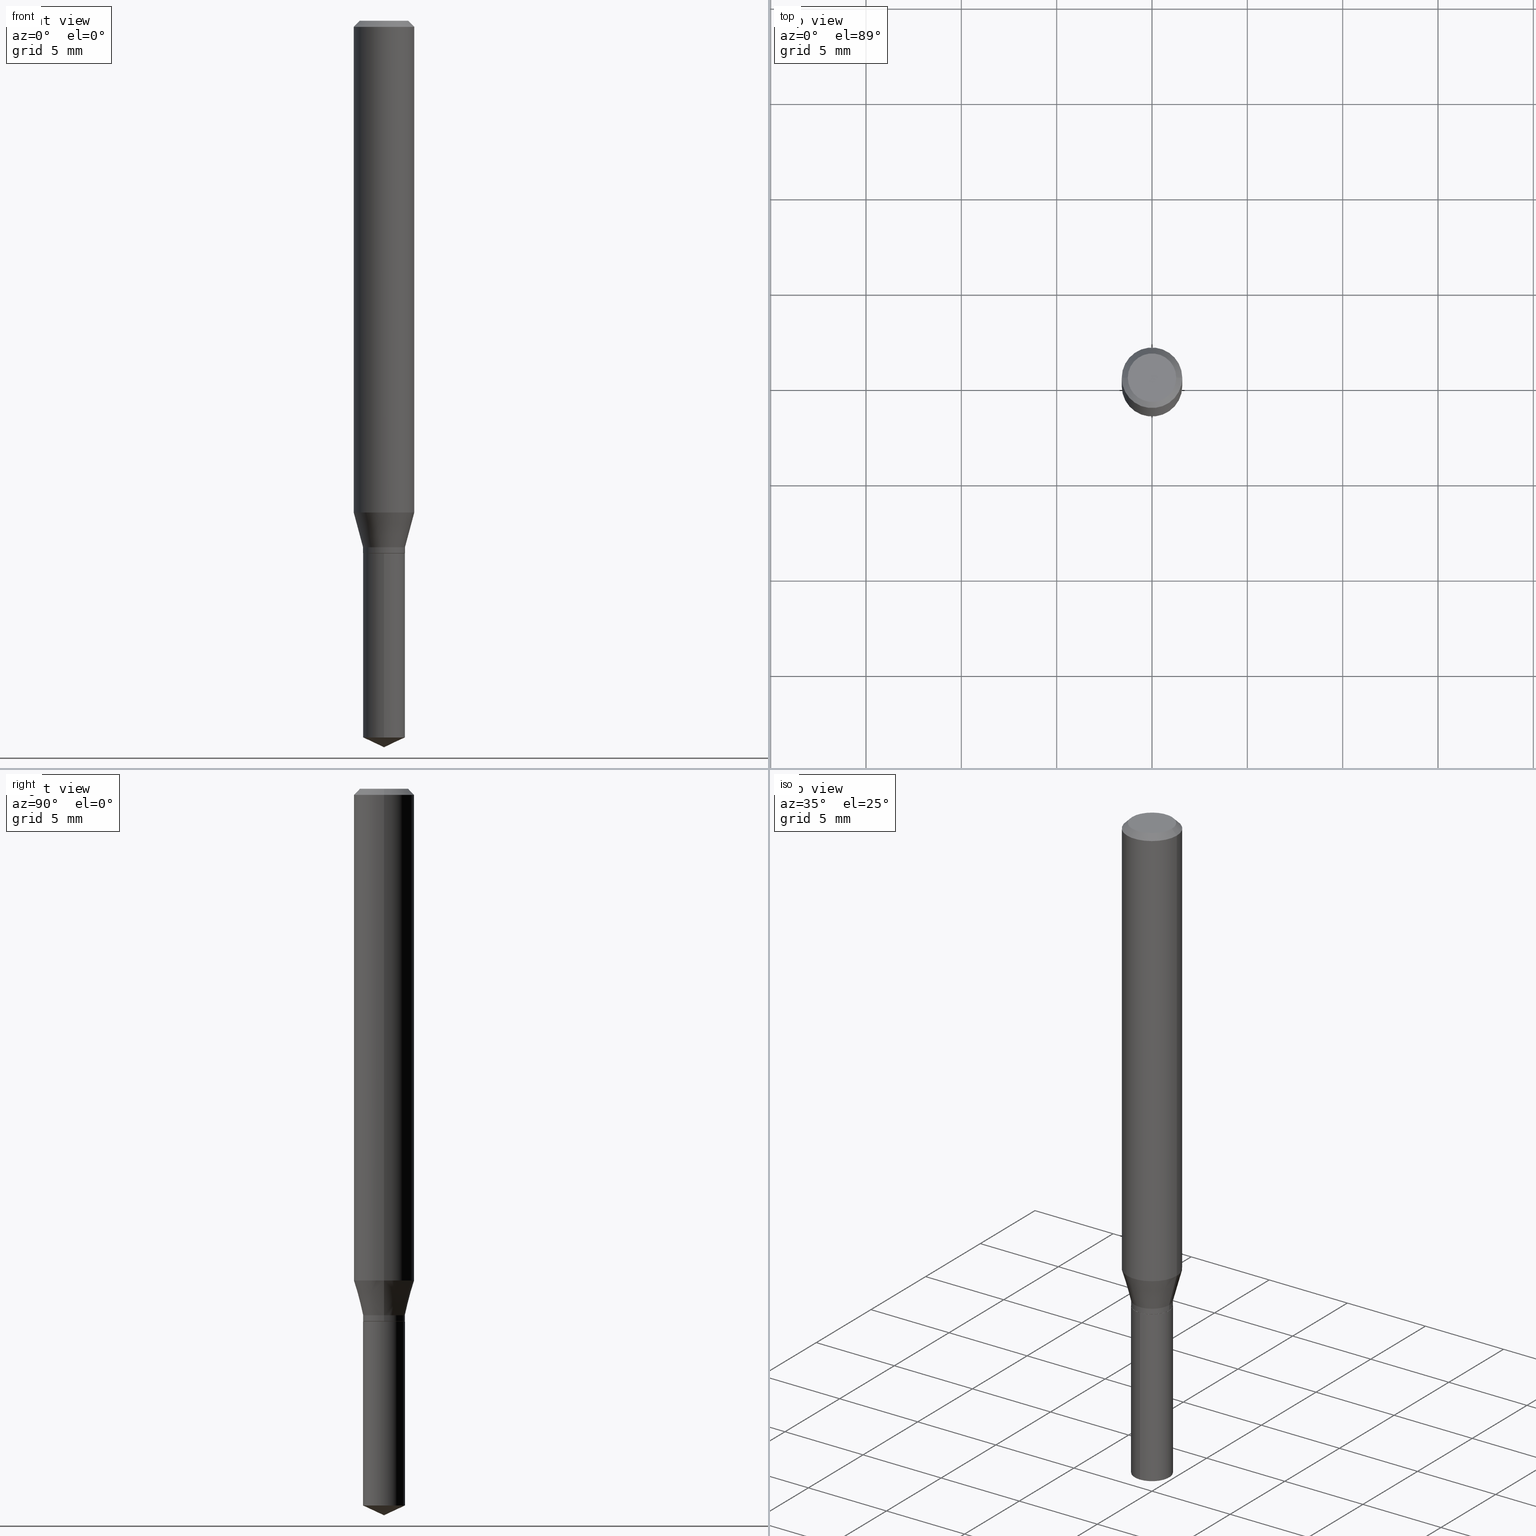
[diagram: canonical four-view strip — front | top / right | iso, engineering-drawing reading convention]
A machine part, canonical four-view strip (front | top / right | iso — engineering-drawing reading convention). The complete STEP part file that produces these views, byte-faithful:
ISO-10303-21;
HEADER;
FILE_DESCRIPTION (( 'STEP AP203' ),
    '1' );
FILE_NAME ('07364.STEP',
    '2024-04-23T20:45:41',
    ( '' ),
    ( '' ),
    'SwSTEP 2.0',
    'SolidWorks 2023',
    '' );
FILE_SCHEMA (( 'CONFIG_CONTROL_DESIGN' ));
ENDSEC;

DATA;
#1 = ADVANCED_FACE ( 'NONE', ( #488 ), #162, .T. ) ;
#2 = FACE_OUTER_BOUND ( 'NONE', #59, .T. ) ;
#3 = DIRECTION ( 'NONE',  ( 2.438088387897960049E-29, -3.491481338843145188E-15, -1.000000000000000000 ) ) ;
#4 = CC_DESIGN_DATE_AND_TIME_ASSIGNMENT ( #421, #41, ( #117 ) ) ;
#5 = AXIS2_PLACEMENT_3D ( 'NONE', #335, #417, #446 ) ;
#6 = AXIS2_PLACEMENT_3D ( 'NONE', #200, #354, #442 ) ;
#7 = FACE_OUTER_BOUND ( 'NONE', #94, .T. ) ;
#8 = AXIS2_PLACEMENT_3D ( 'NONE', #287, #250, #91 ) ;
#9 = DIRECTION ( 'NONE',  ( -1.000000000000000000, 6.982962677686265922E-15, -4.876176775795935793E-29 ) ) ;
#10 = FACE_OUTER_BOUND ( 'NONE', #194, .T. ) ;
#11 = AXIS2_PLACEMENT_3D ( 'NONE', #51, #129, #61 ) ;
#12 = ORIENTED_EDGE ( 'NONE', *, *, #396, .F. ) ;
#13 = EDGE_CURVE ( 'NONE', #424, #394, #458, .T. ) ;
#14 = EDGE_CURVE ( 'NONE', #258, #128, #378, .T. ) ;
#15 = DIRECTION ( 'NONE',  ( -2.445399690415121530E-29, 3.491580316559632610E-15, 1.000000000000000000 ) ) ;
#16 = ADVANCED_FACE ( 'NONE', ( #371 ), #34, .F. ) ;
#17 = CARTESIAN_POINT ( 'NONE',  ( 2.690015686803650369E-29, -3.840629472727460101E-15, -1.100000000000000089 ) ) ;
#18 = VERTEX_POINT ( 'NONE', #28 ) ;
#19 = DIRECTION ( 'NONE',  ( 1.000000000000000000, -6.982962677686269077E-15, 0.000000000000000000 ) ) ;
#20 = ORIENTED_EDGE ( 'NONE', *, *, #143, .T. ) ;
#21 = PERSON_AND_ORGANIZATION ( #165, #199 ) ;
#22 = DIRECTION ( 'NONE',  ( -2.445468806185136597E-29, 3.491481338843145583E-15, 1.000000000000000000 ) ) ;
#23 = VERTEX_POINT ( 'NONE', #73 ) ;
#24 = AXIS2_PLACEMENT_3D ( 'NONE', #87, #42, #124 ) ;
#25 = DIRECTION ( 'NONE',  ( -6.982962677686265922E-15, -1.000000000000000000, 3.154558884138872662E-15 ) ) ;
#26 = EDGE_LOOP ( 'NONE', ( #201, #134, #30, #315 ) ) ;
#27 = DIRECTION ( 'NONE',  ( 2.445468806185136597E-29, -3.491481338843145583E-15, -1.000000000000000000 ) ) ;
#28 = CARTESIAN_POINT ( 'NONE',  ( 3.076650045841595075E-16, 0.04329999999999615407, -1.100000000000000089 ) ) ;
#29 = DIRECTION ( 'NONE',  ( -2.445399690415121530E-29, 3.491580316559632610E-15, 1.000000000000000000 ) ) ;
#30 = ORIENTED_EDGE ( 'NONE', *, *, #351, .F. ) ;
#31 = CLOSED_SHELL ( 'NONE', ( #317, #420, #217, #1, #451, #180, #161, #58, #443, #16, #219, #324 ) ) ;
#32 = MECHANICAL_CONTEXT ( 'NONE', #381, 'mechanical' ) ;
#33 = EDGE_CURVE ( 'NONE', #279, #56, #490, .T. ) ;
#34 = PLANE ( 'NONE',  #221 ) ;
#35 = DIRECTION ( 'NONE',  ( 6.982962677686265922E-15, 1.000000000000000000, -3.491580316559632610E-15 ) ) ;
#36 = CARTESIAN_POINT ( 'NONE',  ( 0.000000000000000000, 0.000000000000000000, 0.000000000000000000 ) ) ;
#37 = CARTESIAN_POINT ( 'NONE',  ( -0.06250000000000001388, 3.927916506198521080E-16, -0.01250000000000008570 ) ) ;
#38 = CONICAL_SURFACE ( 'NONE', #293, 84.42940631927322670, 1.134464013796310899 ) ;
#39 =( LENGTH_UNIT ( ) NAMED_UNIT ( * ) SI_UNIT ( $, .METRE. ) );
#40 = LINE ( 'NONE', #107, #156 ) ;
#41 = DATE_TIME_ROLE ( 'classification_date' ) ;
#42 = DIRECTION ( 'NONE',  ( -2.445468806185136597E-29, 3.491481338843145583E-15, 1.000000000000000000 ) ) ;
#43 = APPROVAL_DATE_TIME ( #228, #84 ) ;
#44 = CARTESIAN_POINT ( 'NONE',  ( 0.06250000000000006939, -4.364351673553921624E-16, 3.047610484872463374E-30 ) ) ;
#45 = CONICAL_SURFACE ( 'NONE', #464, 0.04329999999999999127, 0.2617993877991499629 ) ;
#46 = ORIENTED_EDGE ( 'NONE', *, *, #120, .F. ) ;
#47 = DESIGN_CONTEXT ( 'detailed design', #450, 'design' ) ;
#48 = CYLINDRICAL_SURFACE ( 'NONE', #24, 0.04329999999999999127 ) ;
#49 = DIRECTION ( 'NONE',  ( 1.000000000000000000, -6.982962677686265922E-15, 4.876176775795935793E-29 ) ) ;
#50 = PERSON_AND_ORGANIZATION ( #165, #199 ) ;
#51 = CARTESIAN_POINT ( 'NONE',  ( 2.690015686803650369E-29, -3.840629472727460101E-15, -1.100000000000000089 ) ) ;
#52 = ORIENTED_EDGE ( 'NONE', *, *, #149, .T. ) ;
#53 = FACE_OUTER_BOUND ( 'NONE', #323, .T. ) ;
#54 = ORIENTED_EDGE ( 'NONE', *, *, #330, .T. ) ;
#55 = DIRECTION ( 'NONE',  ( 1.000000000000000000, -6.982962677686265922E-15, 0.000000000000000000 ) ) ;
#56 = VERTEX_POINT ( 'NONE', #64 ) ;
#57 = DIRECTION ( 'NONE',  ( 1.000000000000000000, -6.982962677686269866E-15, 0.000000000000000000 ) ) ;
#58 = ADVANCED_FACE ( 'NONE', ( #151 ), #328, .T. ) ;
#59 = EDGE_LOOP ( 'NONE', ( #174, #362, #277, #438 ) ) ;
#60 = VECTOR ( 'NONE', #298, 39.37007874015748143 ) ;
#61 = DIRECTION ( 'NONE',  ( 1.000000000000000000, -6.982962677686269077E-15, 0.000000000000000000 ) ) ;
#62 = ORIENTED_EDGE ( 'NONE', *, *, #377, .F. ) ;
#63 = CARTESIAN_POINT ( 'NONE',  ( -9.260740279983036507E-28, 1.322265303911854087E-13, 37.87007874015748143 ) ) ;
#64 = CARTESIAN_POINT ( 'NONE',  ( -0.04329999999999999127, -3.509396969106145992E-15, -1.099499999999999922 ) ) ;
#65 = DIRECTION ( 'NONE',  ( -1.000000000000000000, 6.982962677686265922E-15, 0.000000000000000000 ) ) ;
#66 = DIRECTION ( 'NONE',  ( -6.982962677686265922E-15, -1.000000000000000000, 6.309117768277745325E-15 ) ) ;
#67 = AXIS2_PLACEMENT_3D ( 'NONE', #300, #144, #187 ) ;
#68 = AXIS2_PLACEMENT_3D ( 'NONE', #284, #139, #55 ) ;
#69 = APPROVAL ( #341, 'UNSPECIFIED' ) ;
#70 = CARTESIAN_POINT ( 'NONE',  ( 2.658224592323243696E-29, -3.795240215322500220E-15, -1.087000000000000188 ) ) ;
#71 = DIRECTION ( 'NONE',  ( -2.445399690415121530E-29, 3.491580316559632610E-15, 1.000000000000000000 ) ) ;
#72 = DIRECTION ( 'NONE',  ( -2.445468806185136597E-29, 3.491481338843145583E-15, 1.000000000000000000 ) ) ;
#73 = CARTESIAN_POINT ( 'NONE',  ( 0.04279999999999998389, -4.139500275332432556E-15, -1.100000000000000089 ) ) ;
#74 = CALENDAR_DATE ( 2024, 23, 4 ) ;
#75 = ORIENTED_EDGE ( 'NONE', *, *, #289, .F. ) ;
#76 = AXIS2_PLACEMENT_3D ( 'NONE', #227, #218, #230 ) ;
#77 = CONICAL_SURFACE ( 'NONE', #350, 0.06250000000000001388, 0.7853981633974453924 ) ;
#78 = PERSON_AND_ORGANIZATION ( #165, #199 ) ;
#79 = CARTESIAN_POINT ( 'NONE',  ( 3.618800200464542381E-29, -5.166762676610084708E-15, -1.479808878401888572 ) ) ;
#80 = APPROVAL_DATE_TIME ( #418, #69 ) ;
#81 = ADVANCED_FACE ( 'NONE', ( #410 ), #130, .T. ) ;
#82 = CARTESIAN_POINT ( 'NONE',  ( -3.023622839437883944E-16, -0.04330000000000383542, -1.099999999999999867 ) ) ;
#83 = VERTEX_POINT ( 'NONE', #366 ) ;
#84 = APPROVAL ( #111, 'UNSPECIFIED' ) ;
#85 = VECTOR ( 'NONE', #121, 39.37007874015748143 ) ;
#86 = CC_DESIGN_APPROVAL ( #84, ( #175 ) ) ;
#87 = CARTESIAN_POINT ( 'NONE',  ( 0.000000000000000000, 0.000000000000000000, 0.000000000000000000 ) ) ;
#88 = COORDINATED_UNIVERSAL_TIME_OFFSET ( 5, 0, .BEHIND. ) ;
#89 = CARTESIAN_POINT ( 'NONE',  ( 3.076650045841501397E-16, 0.04329999999999615407, -1.100000000000000089 ) ) ;
#90 = EDGE_LOOP ( 'NONE', ( #355, #472, #198 ) ) ;
#91 = DIRECTION ( 'NONE',  ( 1.000000000000000000, -6.982962677686265922E-15, 4.875957971899673662E-29 ) ) ;
#92 = CIRCLE ( 'NONE', #76, 0.04999999999999999584 ) ;
#93 = AXIS2_PLACEMENT_3D ( 'NONE', #280, #483, #96 ) ;
#94 = EDGE_LOOP ( 'NONE', ( #158, #115, #52, #285 ) ) ;
#95 = PERSON_AND_ORGANIZATION_ROLE ( 'classification_officer' ) ;
#96 = DIRECTION ( 'NONE',  ( 1.000000000000000000, -6.982962677686269077E-15, 0.000000000000000000 ) ) ;
#97 = ORIENTED_EDGE ( 'NONE', *, *, #289, .T. ) ;
#98 = EDGE_CURVE ( 'NONE', #203, #481, #92, .T. ) ;
#99 = DIRECTION ( 'NONE',  ( 0.2588190451025212391, 1.565188264969622362E-15, 0.9659258262890679791 ) ) ;
#100 = ORIENTED_EDGE ( 'NONE', *, *, #133, .F. ) ;
#101 = CARTESIAN_POINT ( 'NONE',  ( 0.06250000000000001388, -4.724246415962604812E-16, -0.01250000000000008570 ) ) ;
#102 = PRODUCT_RELATED_PRODUCT_CATEGORY ( 'detail', '', ( #448 ) ) ;
#103 = VECTOR ( 'NONE', #395, 39.37007874015748854 ) ;
#104 = ORIENTED_EDGE ( 'NONE', *, *, #125, .F. ) ;
#105 = CARTESIAN_POINT ( 'NONE',  ( 0.000000000000000000, 0.000000000000000000, 0.000000000000000000 ) ) ;
#106 = CARTESIAN_POINT ( 'NONE',  ( 3.056836007731441853E-31, -4.364351673553962300E-17, -0.01250000000000008570 ) ) ;
#107 = CARTESIAN_POINT ( 'NONE',  ( -3.023622839437883944E-16, -0.04330000000000383542, -1.099999999999999867 ) ) ;
#108 = ORIENTED_EDGE ( 'NONE', *, *, #133, .T. ) ;
#109 = CIRCLE ( 'NONE', #379, 0.04329999999999999127 ) ;
#110 = CARTESIAN_POINT ( 'NONE',  ( 2.690015686803650369E-29, -3.840629472727460101E-15, -1.100000000000000089 ) ) ;
#111 = APPROVAL_STATUS ( 'not_yet_approved' ) ;
#112 = ADVANCED_FACE ( 'NONE', ( #179 ), #444, .F. ) ;
#113 = EDGE_LOOP ( 'NONE', ( #326, #216 ) ) ;
#114 = PERSON_AND_ORGANIZATION ( #165, #199 ) ;
#115 = ORIENTED_EDGE ( 'NONE', *, *, #13, .T. ) ;
#116 = AXIS2_PLACEMENT_3D ( 'NONE', #17, #135, #19 ) ;
#117 = SECURITY_CLASSIFICATION ( '', '', #433 ) ;
#118 = PERSON_AND_ORGANIZATION ( #165, #199 ) ;
#119 = LINE ( 'NONE', #349, #263 ) ;
#120 = EDGE_CURVE ( 'NONE', #56, #364, #407, .T. ) ;
#121 = DIRECTION ( 'NONE',  ( -2.445399690415121810E-29, 3.491580316559632610E-15, 1.000000000000000000 ) ) ;
#122 = VECTOR ( 'NONE', #99, 39.37007874015748854 ) ;
#123 = DIRECTION ( 'NONE',  ( 1.000000000000000000, -6.982962677686266711E-15, 4.876176775795935793E-29 ) ) ;
#124 = DIRECTION ( 'NONE',  ( 1.000000000000000000, -6.982962677686267499E-15, 4.876176775795936353E-29 ) ) ;
#125 = EDGE_CURVE ( 'NONE', #481, #132, #147, .T. ) ;
#126 = ORIENTED_EDGE ( 'NONE', *, *, #297, .F. ) ;
#127 = CARTESIAN_POINT ( 'NONE',  ( 3.668099535622682155E-29, -5.237370474839448718E-15, -1.500000000000000222 ) ) ;
#128 = VERTEX_POINT ( 'NONE', #456 ) ;
#129 = DIRECTION ( 'NONE',  ( -2.445468806185136597E-29, 3.491481338843145583E-15, 1.000000000000000000 ) ) ;
#130 = CONICAL_SURFACE ( 'NONE', #375, 84.42940631927322670, 1.134464013796310899 ) ;
#131 = LOCAL_TIME ( 16, 45, 41.00000000000000000, #170 ) ;
#132 = VERTEX_POINT ( 'NONE', #296 ) ;
#133 = EDGE_CURVE ( 'NONE', #394, #424, #337, .T. ) ;
#134 = ORIENTED_EDGE ( 'NONE', *, *, #427, .T. ) ;
#135 = DIRECTION ( 'NONE',  ( -2.445468806185136597E-29, 3.491481338843145583E-15, 1.000000000000000000 ) ) ;
#136 = EDGE_LOOP ( 'NONE', ( #164, #249, #479, #75 ) ) ;
#137 = CARTESIAN_POINT ( 'NONE',  ( 0.04279999999999998389, -4.139500275332432556E-15, -1.100000000000000089 ) ) ;
#138 = ORIENTED_EDGE ( 'NONE', *, *, #255, .T. ) ;
#139 = DIRECTION ( 'NONE',  ( -2.445468806185136597E-29, 3.491481338843145583E-15, 1.000000000000000000 ) ) ;
#140 = AXIS2_PLACEMENT_3D ( 'NONE', #110, #225, #35 ) ;
#141 = CARTESIAN_POINT ( 'NONE',  ( 0.000000000000000000, 0.000000000000000000, 0.000000000000000000 ) ) ;
#142 = APPLICATION_PROTOCOL_DEFINITION ( 'international standard', 'config_control_design', 1994, #450 ) ;
#143 = EDGE_CURVE ( 'NONE', #353, #288, #416, .T. ) ;
#144 = DIRECTION ( 'NONE',  ( -2.445468806185136597E-29, 3.491481338843145583E-15, 1.000000000000000000 ) ) ;
#145 = DIRECTION ( 'NONE',  ( -0.7071067811865294761, 7.493145998870289474E-15, 0.7071067811865655584 ) ) ;
#146 = DIRECTION ( 'NONE',  ( -2.445468806185136597E-29, 3.491481338843145583E-15, 1.000000000000000000 ) ) ;
#147 = LINE ( 'NONE', #37, #477 ) ;
#148 = AXIS2_PLACEMENT_3D ( 'NONE', #303, #454, #264 ) ;
#149 = EDGE_CURVE ( 'NONE', #394, #206, #40, .T. ) ;
#150 = APPROVAL_ROLE ( '' ) ;
#151 = FACE_OUTER_BOUND ( 'NONE', #241, .T. ) ;
#152 = CC_DESIGN_PERSON_AND_ORGANIZATION_ASSIGNMENT ( #470, #384, ( #425 ) ) ;
#153 = FACE_OUTER_BOUND ( 'NONE', #90, .T. ) ;
#154 = EDGE_CURVE ( 'NONE', #364, #128, #119, .T. ) ;
#155 = EDGE_LOOP ( 'NONE', ( #108, #466, #62, #440 ) ) ;
#156 = VECTOR ( 'NONE', #159, 39.37007874015748143 ) ;
#157 = AXIS2_PLACEMENT_3D ( 'NONE', #260, #372, #406 ) ;
#158 = ORIENTED_EDGE ( 'NONE', *, *, #224, .F. ) ;
#159 = DIRECTION ( 'NONE',  ( -2.445399690415121810E-29, 3.491580316559632610E-15, 1.000000000000000000 ) ) ;
#160 = DIRECTION ( 'NONE',  ( -0.7071067811865454633, 2.468850131082235367E-15, -0.7071067811865495711 ) ) ;
#161 = ADVANCED_FACE ( 'NONE', ( #308 ), #45, .T. ) ;
#162 = CONICAL_SURFACE ( 'NONE', #67, 0.04329999999999999127, 0.2617993877991499629 ) ;
#163 = AXIS2_PLACEMENT_3D ( 'NONE', #363, #27, #178 ) ;
#164 = ORIENTED_EDGE ( 'NONE', *, *, #33, .F. ) ;
#165 = PERSON ( 'UNSPECIFIED', 'UNSPECIFIED', 'UNSPECIFIED', ('UNSPECIFIED'), ('UNSPECIFIED'), ('UNSPECIFIED') ) ;
#166 = CARTESIAN_POINT ( 'NONE',  ( 0.04329999999999999127, -4.097602499266315682E-15, -1.087000000000000188 ) ) ;
#167 = ORIENTED_EDGE ( 'NONE', *, *, #271, .T. ) ;
#168 = LINE ( 'NONE', #137, #244 ) ;
#169 = ORIENTED_EDGE ( 'NONE', *, *, #271, .F. ) ;
#170 = COORDINATED_UNIVERSAL_TIME_OFFSET ( 5, 0, .BEHIND. ) ;
#171 = CARTESIAN_POINT ( 'NONE',  ( 2.690015686803650369E-29, -3.840629472727460101E-15, -1.100000000000000089 ) ) ;
#172 = VECTOR ( 'NONE', #489, 39.37007874015748143 ) ;
#173 = ADVANCED_BREP_SHAPE_REPRESENTATION ( '07364', ( #399, #403, #301 ), #419 ) ;
#174 = ORIENTED_EDGE ( 'NONE', *, *, #373, .F. ) ;
#175 = PRODUCT_DEFINITION ( 'UNKNOWN', '', #425, #47 ) ;
#176 = CARTESIAN_POINT ( 'NONE',  ( 3.076650045841595568E-16, 0.04329999999999482874, -1.479808878401888794 ) ) ;
#177 = ORIENTED_EDGE ( 'NONE', *, *, #376, .T. ) ;
#178 = DIRECTION ( 'NONE',  ( -1.000000000000000000, 6.982962677686265922E-15, 0.000000000000000000 ) ) ;
#179 = FACE_OUTER_BOUND ( 'NONE', #318, .T. ) ;
#180 = ADVANCED_FACE ( 'NONE', ( #10 ), #48, .T. ) ;
#181 = LENGTH_MEASURE_WITH_UNIT ( LENGTH_MEASURE( 0.02539999999999999897 ), #39 );
#182 = DIRECTION ( 'NONE',  ( -2.445399690415121530E-29, 3.491580316559632610E-15, 1.000000000000000000 ) ) ;
#183 = CONICAL_SURFACE ( 'NONE', #93, 0.04279999999999998389, 0.7853981633974227439 ) ;
#184 = EDGE_LOOP ( 'NONE', ( #469, #286, #177, #12 ) ) ;
#185 = LOCAL_TIME ( 16, 45, 41.00000000000000000, #207 ) ;
#186 = CARTESIAN_POINT ( 'NONE',  ( -0.04329999999999999127, 3.076650045841233185E-16, -2.129898894080373703E-30 ) ) ;
#187 = DIRECTION ( 'NONE',  ( 1.000000000000000000, -6.982962677686269866E-15, 0.000000000000000000 ) ) ;
#188 = FACE_OUTER_BOUND ( 'NONE', #239, .T. ) ;
#189 = AXIS2_PLACEMENT_3D ( 'NONE', #79, #182, #66 ) ;
#190 = CIRCLE ( 'NONE', #232, 0.06250000000000012490 ) ;
#191 = CARTESIAN_POINT ( 'NONE',  ( 2.690015686803650369E-29, -3.840629472727460101E-15, -1.100000000000000089 ) ) ;
#192 = SHAPE_DEFINITION_REPRESENTATION ( #305, #173 ) ;
#193 = EDGE_CURVE ( 'NONE', #402, #424, #278, .T. ) ;
#194 = EDGE_LOOP ( 'NONE', ( #46, #97, #20, #382 ) ) ;
#195 = VECTOR ( 'NONE', #145, 39.37007874015748143 ) ;
#196 = CIRCLE ( 'NONE', #8, 0.04999999999999999584 ) ;
#197 = CYLINDRICAL_SURFACE ( 'NONE', #252, 0.06250000000000006939 ) ;
#198 = ORIENTED_EDGE ( 'NONE', *, *, #13, .F. ) ;
#199 = ORGANIZATION ( 'UNSPECIFIED', 'UNSPECIFIED', '' ) ;
#200 = CARTESIAN_POINT ( 'NONE',  ( 2.688792952400557567E-29, -3.838883732058038598E-15, -1.099499999999999922 ) ) ;
#201 = ORIENTED_EDGE ( 'NONE', *, *, #14, .T. ) ;
#202 = APPROVAL_STATUS ( 'not_yet_approved' ) ;
#203 = VERTEX_POINT ( 'NONE', #459 ) ;
#204 = EDGE_CURVE ( 'NONE', #258, #83, #237, .T. ) ;
#205 = CARTESIAN_POINT ( 'NONE',  ( 0.06250000000000012490, -3.981491976273259737E-15, -1.015344624494677328 ) ) ;
#206 = VERTEX_POINT ( 'NONE', #82 ) ;
#207 = COORDINATED_UNIVERSAL_TIME_OFFSET ( 5, 0, .BEHIND. ) ;
#208 = CARTESIAN_POINT ( 'NONE',  ( -0.04279999999999998389, -3.533867954648026776E-15, -1.100000000000000089 ) ) ;
#209 = ORIENTED_EDGE ( 'NONE', *, *, #330, .F. ) ;
#210 = CIRCLE ( 'NONE', #360, 0.04279999999999998389 ) ;
#211 = DIRECTION ( 'NONE',  ( 1.000000000000000000, -6.982962677686269077E-15, 0.000000000000000000 ) ) ;
#212 = AXIS2_PLACEMENT_3D ( 'NONE', #191, #15, #342 ) ;
#213 = CONICAL_SURFACE ( 'NONE', #163, 0.06250000000000001388, 0.7853981633974453924 ) ;
#214 = ORIENTED_EDGE ( 'NONE', *, *, #476, .F. ) ;
#215 = CARTESIAN_POINT ( 'NONE',  ( 2.690015686803650369E-29, -3.840629472727460101E-15, -1.100000000000000089 ) ) ;
#216 = ORIENTED_EDGE ( 'NONE', *, *, #98, .T. ) ;
#217 = ADVANCED_FACE ( 'NONE', ( #310 ), #197, .T. ) ;
#218 = DIRECTION ( 'NONE',  ( -2.445468806185136597E-29, 3.491481338843145583E-15, 1.000000000000000000 ) ) ;
#219 = ADVANCED_FACE ( 'NONE', ( #429 ), #276, .F. ) ;
#220 =( NAMED_UNIT ( * ) SI_UNIT ( $, .STERADIAN. ) SOLID_ANGLE_UNIT ( ) );
#221 = AXIS2_PLACEMENT_3D ( 'NONE', #405, #3, #9 ) ;
#222 = EDGE_LOOP ( 'NONE', ( #167, #267, #209, #475 ) ) ;
#223 = LOCAL_TIME ( 16, 45, 41.00000000000000000, #88 ) ;
#224 = EDGE_CURVE ( 'NONE', #424, #18, #233, .T. ) ;
#225 = DIRECTION ( 'NONE',  ( 2.445399690415121250E-29, -3.491580316559632610E-15, -1.000000000000000000 ) ) ;
#226 = CARTESIAN_POINT ( 'NONE',  ( 2.690015686803650369E-29, -3.840629472727460101E-15, -1.100000000000000089 ) ) ;
#227 = CARTESIAN_POINT ( 'NONE',  ( 3.893286209682126177E-47, -5.558580879666067980E-33, -1.592040838891559689E-18 ) ) ;
#228 = DATE_AND_TIME ( #74, #485 ) ;
#229 = DIMENSIONAL_EXPONENTS ( 1.000000000000000000, 0.000000000000000000, 0.000000000000000000, 0.000000000000000000, 0.000000000000000000, 0.000000000000000000, 0.000000000000000000 ) ;
#230 = DIRECTION ( 'NONE',  ( 1.000000000000000000, -6.982962677686265922E-15, 4.875957971899673662E-29 ) ) ;
#231 = VECTOR ( 'NONE', #334, 39.37007874015748143 ) ;
#232 = AXIS2_PLACEMENT_3D ( 'NONE', #389, #22, #253 ) ;
#233 = LINE ( 'NONE', #89, #85 ) ;
#234 = ORIENTED_EDGE ( 'NONE', *, *, #14, .F. ) ;
#235 = VECTOR ( 'NONE', #344, 39.37007874015748143 ) ;
#236 = AXIS2_PLACEMENT_3D ( 'NONE', #105, #72, #365 ) ;
#237 = LINE ( 'NONE', #44, #235 ) ;
#238 = CC_DESIGN_PERSON_AND_ORGANIZATION_ASSIGNMENT ( #114, #242, ( #175 ) ) ;
#239 = EDGE_LOOP ( 'NONE', ( #54, #311, #251, #473 ) ) ;
#240 = DIRECTION ( 'NONE',  ( 0.7071067811865454633, -7.319954787623248157E-15, -0.7071067811865495711 ) ) ;
#241 = EDGE_LOOP ( 'NONE', ( #246, #359, #256, #214 ) ) ;
#242 = PERSON_AND_ORGANIZATION_ROLE ( 'creator' ) ;
#243 = CIRCLE ( 'NONE', #212, 0.04329999999999999127 ) ;
#244 = VECTOR ( 'NONE', #471, 39.37007874015748143 ) ;
#245 = CARTESIAN_POINT ( 'NONE',  ( -3.023622839437790760E-16, -0.04330000000000516075, -1.479808878401888128 ) ) ;
#246 = ORIENTED_EDGE ( 'NONE', *, *, #427, .F. ) ;
#247 = CALENDAR_DATE ( 2024, 23, 4 ) ;
#248 = CARTESIAN_POINT ( 'NONE',  ( 2.658224592323243696E-29, -3.795240215322500220E-15, -1.087000000000000188 ) ) ;
#249 = ORIENTED_EDGE ( 'NONE', *, *, #412, .T. ) ;
#250 = DIRECTION ( 'NONE',  ( -2.445468806185136597E-29, 3.491481338843145583E-15, 1.000000000000000000 ) ) ;
#251 = ORIENTED_EDGE ( 'NONE', *, *, #487, .F. ) ;
#252 = AXIS2_PLACEMENT_3D ( 'NONE', #348, #461, #123 ) ;
#253 = DIRECTION ( 'NONE',  ( 1.000000000000000000, -6.982962677686264344E-15, 0.000000000000000000 ) ) ;
#254 = AXIS2_PLACEMENT_3D ( 'NONE', #215, #401, #385 ) ;
#255 = EDGE_CURVE ( 'NONE', #18, #206, #243, .T. ) ;
#256 = ORIENTED_EDGE ( 'NONE', *, *, #204, .T. ) ;
#257 = CYLINDRICAL_SURFACE ( 'NONE', #345, 0.04329999999999999127 ) ;
#258 = VERTEX_POINT ( 'NONE', #205 ) ;
#259 = CC_DESIGN_PERSON_AND_ORGANIZATION_ASSIGNMENT ( #50, #95, ( #117 ) ) ;
#260 = CARTESIAN_POINT ( 'NONE',  ( 3.056836007731441853E-31, -4.364351673553962300E-17, -0.01250000000000008570 ) ) ;
#261 = DIRECTION ( 'NONE',  ( -6.982962677686267499E-15, -1.000000000000000000, 3.520397390770500413E-15 ) ) ;
#262 = CARTESIAN_POINT ( 'NONE',  ( -0.06250000000000006939, 4.440892098500631092E-16, -3.074334431409319267E-30 ) ) ;
#263 = VECTOR ( 'NONE', #462, 39.37007874015748854 ) ;
#264 = DIRECTION ( 'NONE',  ( -6.982962677686265922E-15, -1.000000000000000000, 6.309117768277745325E-15 ) ) ;
#265 = CC_DESIGN_SECURITY_CLASSIFICATION ( #117, ( #425 ) ) ;
#266 = APPLICATION_PROTOCOL_DEFINITION ( 'international standard', 'config_control_design', 1994, #381 ) ;
#267 = ORIENTED_EDGE ( 'NONE', *, *, #33, .T. ) ;
#268 =( NAMED_UNIT ( * ) PLANE_ANGLE_UNIT ( ) SI_UNIT ( $, .RADIAN. ) );
#269 = DIRECTION ( 'NONE',  ( 1.000000000000000000, -6.982962677686266711E-15, 4.876176775795935793E-29 ) ) ;
#270 = CALENDAR_DATE ( 2024, 23, 4 ) ;
#271 = EDGE_CURVE ( 'NONE', #23, #279, #210, .T. ) ;
#272 = LOCAL_TIME ( 16, 45, 41.00000000000000000, #306 ) ;
#273 = CARTESIAN_POINT ( 'NONE',  ( 3.668252923656895710E-29, -5.237152723863177100E-15, -1.500000000000000222 ) ) ;
#274 = AXIS2_PLACEMENT_3D ( 'NONE', #141, #449, #269 ) ;
#275 = AXIS2_PLACEMENT_3D ( 'NONE', #171, #322, #25 ) ;
#276 = PLANE ( 'NONE',  #299 ) ;
#277 = ORIENTED_EDGE ( 'NONE', *, *, #125, .T. ) ;
#278 = LINE ( 'NONE', #273, #452 ) ;
#279 = VERTEX_POINT ( 'NONE', #208 ) ;
#280 = CARTESIAN_POINT ( 'NONE',  ( 2.690015686803650369E-29, -3.840629472727460101E-15, -1.100000000000000089 ) ) ;
#281 = ORIENTED_EDGE ( 'NONE', *, *, #377, .T. ) ;
#282 = DATE_AND_TIME ( #319, #223 ) ;
#283 = APPROVAL_PERSON_ORGANIZATION ( #78, #69, #356 ) ;
#284 = CARTESIAN_POINT ( 'NONE',  ( 3.056836007731441853E-31, -4.364351673553962300E-17, -0.01250000000000008570 ) ) ;
#285 = ORIENTED_EDGE ( 'NONE', *, *, #255, .F. ) ;
#286 = ORIENTED_EDGE ( 'NONE', *, *, #358, .T. ) ;
#287 = CARTESIAN_POINT ( 'NONE',  ( 3.893286209682126177E-47, -5.558580879666067980E-33, -1.592040838891559689E-18 ) ) ;
#288 = VERTEX_POINT ( 'NONE', #166 ) ;
#289 = EDGE_CURVE ( 'NONE', #56, #353, #484, .T. ) ;
#290 = DIRECTION ( 'NONE',  ( -2.445468806185136597E-29, 3.491481338843145583E-15, 1.000000000000000000 ) ) ;
#291 = EDGE_LOOP ( 'NONE', ( #169, #312 ) ) ;
#292 = CARTESIAN_POINT ( 'NONE',  ( 0.04329999999999999127, -4.141246016001854060E-15, -1.099499999999999922 ) ) ;
#293 = AXIS2_PLACEMENT_3D ( 'NONE', #63, #408, #336 ) ;
#294 = CARTESIAN_POINT ( 'NONE',  ( -9.260740279983036507E-28, 1.322265303911854087E-13, 37.87007874015748143 ) ) ;
#295 = PERSON_AND_ORGANIZATION ( #165, #199 ) ;
#296 = CARTESIAN_POINT ( 'NONE',  ( -0.06250000000000001388, -1.350260952976639620E-15, -0.01250000000000008570 ) ) ;
#297 = EDGE_CURVE ( 'NONE', #402, #394, #435, .T. ) ;
#298 = DIRECTION ( 'NONE',  ( -2.445468806185136877E-29, 3.491481338843145188E-15, 1.000000000000000000 ) ) ;
#299 = AXIS2_PLACEMENT_3D ( 'NONE', #383, #346, #49 ) ;
#300 = CARTESIAN_POINT ( 'NONE',  ( 2.658224592323243696E-29, -3.795240215322500220E-15, -1.087000000000000188 ) ) ;
#301 = AXIS2_PLACEMENT_3D ( 'NONE', #36, #332, #304 ) ;
#302 = LINE ( 'NONE', #262, #60 ) ;
#303 = CARTESIAN_POINT ( 'NONE',  ( 3.618800200464542381E-29, -5.166762676610084708E-15, -1.479808878401888572 ) ) ;
#304 = DIRECTION ( 'NONE',  ( 1.000000000000000000, 0.000000000000000000, 0.000000000000000000 ) ) ;
#305 = PRODUCT_DEFINITION_SHAPE ( 'NONE', 'NONE',  #175 ) ;
#306 = COORDINATED_UNIVERSAL_TIME_OFFSET ( 5, 0, .BEHIND. ) ;
#307 = UNCERTAINTY_MEASURE_WITH_UNIT (LENGTH_MEASURE( 1.000000000000000082E-05 ), #370, 'distance_accuracy_value', 'NONE');
#308 = FACE_OUTER_BOUND ( 'NONE', #184, .T. ) ;
#309 = APPROVAL_PERSON_ORGANIZATION ( #295, #84, #150 ) ;
#310 = FACE_OUTER_BOUND ( 'NONE', #26, .T. ) ;
#311 = ORIENTED_EDGE ( 'NONE', *, *, #120, .T. ) ;
#312 = ORIENTED_EDGE ( 'NONE', *, *, #412, .F. ) ;
#313 = APPROVAL_DATE_TIME ( #282, #367 ) ;
#314 = AXIS2_PLACEMENT_3D ( 'NONE', #70, #146, #404 ) ;
#315 = ORIENTED_EDGE ( 'NONE', *, *, #204, .F. ) ;
#316 = LINE ( 'NONE', #101, #400 ) ;
#317 = ADVANCED_FACE ( 'NONE', ( #480 ), #329, .T. ) ;
#318 = EDGE_LOOP ( 'NONE', ( #281, #138 ) ) ;
#319 = CALENDAR_DATE ( 2024, 23, 4 ) ;
#320 = FACE_OUTER_BOUND ( 'NONE', #155, .T. ) ;
#321 = ORIENTED_EDGE ( 'NONE', *, *, #351, .T. ) ;
#322 = DIRECTION ( 'NONE',  ( -2.445399690415121530E-29, 3.491580316559632610E-15, 1.000000000000000000 ) ) ;
#323 = EDGE_LOOP ( 'NONE', ( #397, #347, #321, #104 ) ) ;
#324 = ADVANCED_FACE ( 'NONE', ( #325 ), #183, .T. ) ;
#325 = FACE_OUTER_BOUND ( 'NONE', #136, .T. ) ;
#326 = ORIENTED_EDGE ( 'NONE', *, *, #392, .T. ) ;
#327 = CARTESIAN_POINT ( 'NONE',  ( 3.668099535622682715E-29, -5.237370474839449507E-15, -1.500000000000000222 ) ) ;
#328 = CYLINDRICAL_SURFACE ( 'NONE', #274, 0.06250000000000006939 ) ;
#329 = CONICAL_SURFACE ( 'NONE', #116, 0.04279999999999998389, 0.7853981633974227439 ) ;
#330 = EDGE_CURVE ( 'NONE', #353, #56, #387, .T. ) ;
#331 = CC_DESIGN_APPROVAL ( #367, ( #425 ) ) ;
#332 = DIRECTION ( 'NONE',  ( 0.000000000000000000, 0.000000000000000000, 1.000000000000000000 ) ) ;
#333 = EDGE_CURVE ( 'NONE', #23, #353, #168, .T. ) ;
#334 = DIRECTION ( 'NONE',  ( -2.445468806185136877E-29, 3.491481338843145188E-15, 1.000000000000000000 ) ) ;
#335 = CARTESIAN_POINT ( 'NONE',  ( 2.482993606729494385E-29, -3.545056808917866884E-15, -1.015344624494677328 ) ) ;
#336 = DIRECTION ( 'NONE',  ( -6.982962677686267499E-15, -1.000000000000000000, 3.520397390770500413E-15 ) ) ;
#337 = CIRCLE ( 'NONE', #189, 0.04329999999999999127 ) ;
#338 = CIRCLE ( 'NONE', #314, 0.04329999999999999127 ) ;
#339 = CARTESIAN_POINT ( 'NONE',  ( -0.04279999999999998389, -3.536517181822137583E-15, -1.100000000000000089 ) ) ;
#340 = CC_DESIGN_DATE_AND_TIME_ASSIGNMENT ( #457, #428, ( #175 ) ) ;
#341 = APPROVAL_STATUS ( 'not_yet_approved' ) ;
#342 = DIRECTION ( 'NONE',  ( -6.982962677686265922E-15, -1.000000000000000000, 3.154558884138872662E-15 ) ) ;
#343 = APPROVAL_ROLE ( '' ) ;
#344 = DIRECTION ( 'NONE',  ( -2.445468806185136877E-29, 3.491481338843145188E-15, 1.000000000000000000 ) ) ;
#345 = AXIS2_PLACEMENT_3D ( 'NONE', #226, #29, #445 ) ;
#346 = DIRECTION ( 'NONE',  ( -2.438088387897960049E-29, 3.491481338843145188E-15, 1.000000000000000000 ) ) ;
#347 = ORIENTED_EDGE ( 'NONE', *, *, #373, .T. ) ;
#348 = CARTESIAN_POINT ( 'NONE',  ( 0.000000000000000000, 0.000000000000000000, 0.000000000000000000 ) ) ;
#349 = CARTESIAN_POINT ( 'NONE',  ( -0.04329999999999999127, -3.487575210738376803E-15, -1.087000000000000188 ) ) ;
#350 = AXIS2_PLACEMENT_3D ( 'NONE', #106, #374, #65 ) ;
#351 = EDGE_CURVE ( 'NONE', #83, #132, #465, .T. ) ;
#352 = DIRECTION ( 'NONE',  ( -2.445468806185136597E-29, 3.491481338843145583E-15, 1.000000000000000000 ) ) ;
#353 = VERTEX_POINT ( 'NONE', #292 ) ;
#354 = DIRECTION ( 'NONE',  ( -2.445468806185136597E-29, 3.491481338843145583E-15, 1.000000000000000000 ) ) ;
#355 = ORIENTED_EDGE ( 'NONE', *, *, #193, .F. ) ;
#356 = APPROVAL_ROLE ( '' ) ;
#357 = CARTESIAN_POINT ( 'NONE',  ( -0.04329999999999999127, -3.509396969106145992E-15, -1.087000000000000188 ) ) ;
#358 = EDGE_CURVE ( 'NONE', #364, #288, #109, .T. ) ;
#359 = ORIENTED_EDGE ( 'NONE', *, *, #396, .T. ) ;
#360 = AXIS2_PLACEMENT_3D ( 'NONE', #437, #478, #211 ) ;
#361 = LINE ( 'NONE', #431, #122 ) ;
#362 = ORIENTED_EDGE ( 'NONE', *, *, #392, .F. ) ;
#363 = CARTESIAN_POINT ( 'NONE',  ( 3.056836007731441853E-31, -4.364351673553962300E-17, -0.01250000000000008570 ) ) ;
#364 = VERTEX_POINT ( 'NONE', #357 ) ;
#365 = DIRECTION ( 'NONE',  ( 1.000000000000000000, -6.982962677686267499E-15, 4.876176775795936353E-29 ) ) ;
#366 = CARTESIAN_POINT ( 'NONE',  ( 0.06250000000000001388, -4.800786840909313294E-16, -0.01250000000000008570 ) ) ;
#367 = APPROVAL ( #202, 'UNSPECIFIED' ) ;
#368 = CIRCLE ( 'NONE', #11, 0.04279999999999998389 ) ;
#369 = CARTESIAN_POINT ( 'NONE',  ( 0.04329999999999999127, -3.023622839438153143E-16, 2.111384543919639926E-30 ) ) ;
#370 =( CONVERSION_BASED_UNIT ( 'INCH', #181 ) LENGTH_UNIT ( ) NAMED_UNIT ( #229 ) );
#371 = FACE_OUTER_BOUND ( 'NONE', #113, .T. ) ;
#372 = DIRECTION ( 'NONE',  ( -2.445468806185136597E-29, 3.491481338843145583E-15, 1.000000000000000000 ) ) ;
#373 = EDGE_CURVE ( 'NONE', #203, #83, #316, .T. ) ;
#374 = DIRECTION ( 'NONE',  ( 2.445468806185136597E-29, -3.491481338843145583E-15, -1.000000000000000000 ) ) ;
#375 = AXIS2_PLACEMENT_3D ( 'NONE', #294, #71, #261 ) ;
#376 = EDGE_CURVE ( 'NONE', #288, #258, #361, .T. ) ;
#377 = EDGE_CURVE ( 'NONE', #206, #18, #453, .T. ) ;
#378 = CIRCLE ( 'NONE', #5, 0.06250000000000012490 ) ;
#379 = AXIS2_PLACEMENT_3D ( 'NONE', #248, #290, #57 ) ;
#380 = DIRECTION ( 'NONE',  ( -2.445468806185136597E-29, 3.491481338843145583E-15, 1.000000000000000000 ) ) ;
#381 = APPLICATION_CONTEXT ( 'configuration controlled 3d designs of mechanical parts and assemblies' ) ;
#382 = ORIENTED_EDGE ( 'NONE', *, *, #358, .F. ) ;
#383 = CARTESIAN_POINT ( 'NONE',  ( 2.690015686803650369E-29, -3.840629472727460101E-15, -1.100000000000000089 ) ) ;
#384 = PERSON_AND_ORGANIZATION_ROLE ( 'design_supplier' ) ;
#385 = DIRECTION ( 'NONE',  ( -6.982962677686265922E-15, -1.000000000000000000, 3.154558884138872662E-15 ) ) ;
#386 = EDGE_LOOP ( 'NONE', ( #126, #432, #100 ) ) ;
#387 = CIRCLE ( 'NONE', #460, 0.04329999999999999127 ) ;
#388 = CC_DESIGN_PERSON_AND_ORGANIZATION_ASSIGNMENT ( #411, #486, ( #448 ) ) ;
#389 = CARTESIAN_POINT ( 'NONE',  ( 2.482993606729494385E-29, -3.545056808917866884E-15, -1.015344624494677328 ) ) ;
#390 = ORIENTED_EDGE ( 'NONE', *, *, #487, .T. ) ;
#391 = PERSON_AND_ORGANIZATION_ROLE ( 'creator' ) ;
#392 = EDGE_CURVE ( 'NONE', #481, #203, #196, .T. ) ;
#393 = DIRECTION ( 'NONE',  ( 1.000000000000000000, -6.982962677686269866E-15, 0.000000000000000000 ) ) ;
#394 = VERTEX_POINT ( 'NONE', #245 ) ;
#395 = DIRECTION ( 'NONE',  ( -6.328713451373358335E-15, -0.9063077870366470501, 0.4226182617407055475 ) ) ;
#396 = EDGE_CURVE ( 'NONE', #128, #258, #190, .T. ) ;
#397 = ORIENTED_EDGE ( 'NONE', *, *, #98, .F. ) ;
#398 = CLOSED_SHELL ( 'NONE', ( #422, #81, #463, #482, #112 ) ) ;
#399 = MANIFOLD_SOLID_BREP ( 'Body-Move/Copy2[1]', #398 ) ;
#400 = VECTOR ( 'NONE', #240, 39.37007874015748143 ) ;
#401 = DIRECTION ( 'NONE',  ( -2.445399690415121530E-29, 3.491580316559632610E-15, 1.000000000000000000 ) ) ;
#402 = VERTEX_POINT ( 'NONE', #327 ) ;
#403 = MANIFOLD_SOLID_BREP ( 'Body-Move/Copy2[2]', #31 ) ;
#404 = DIRECTION ( 'NONE',  ( 1.000000000000000000, -6.982962677686269866E-15, 0.000000000000000000 ) ) ;
#405 = CARTESIAN_POINT ( 'NONE',  ( 1.946643104841063088E-47, -2.779290439833033990E-33, -7.960204194457798443E-19 ) ) ;
#406 = DIRECTION ( 'NONE',  ( 1.000000000000000000, -6.982962677686265922E-15, 0.000000000000000000 ) ) ;
#407 = LINE ( 'NONE', #186, #231 ) ;
#408 = DIRECTION ( 'NONE',  ( -2.445399690415121530E-29, 3.491580316559632610E-15, 1.000000000000000000 ) ) ;
#409 = CC_DESIGN_APPROVAL ( #69, ( #117 ) ) ;
#410 = FACE_OUTER_BOUND ( 'NONE', #386, .T. ) ;
#411 = PERSON_AND_ORGANIZATION ( #165, #199 ) ;
#412 = EDGE_CURVE ( 'NONE', #279, #23, #368, .T. ) ;
#413 = ORIENTED_EDGE ( 'NONE', *, *, #376, .F. ) ;
#414 = COORDINATED_UNIVERSAL_TIME_OFFSET ( 5, 0, .BEHIND. ) ;
#415 = CC_DESIGN_PERSON_AND_ORGANIZATION_ASSIGNMENT ( #118, #391, ( #425 ) ) ;
#416 = LINE ( 'NONE', #369, #172 ) ;
#417 = DIRECTION ( 'NONE',  ( -2.445468806185136597E-29, 3.491481338843145583E-15, 1.000000000000000000 ) ) ;
#418 = DATE_AND_TIME ( #270, #131 ) ;
#419 =( GEOMETRIC_REPRESENTATION_CONTEXT ( 3 ) GLOBAL_UNCERTAINTY_ASSIGNED_CONTEXT ( ( #307 ) ) GLOBAL_UNIT_ASSIGNED_CONTEXT ( ( #370, #268, #220 ) ) REPRESENTATION_CONTEXT ( 'NONE', 'WORKASPACE' ) );
#420 = ADVANCED_FACE ( 'NONE', ( #53 ), #213, .T. ) ;
#421 = DATE_AND_TIME ( #247, #185 ) ;
#422 = ADVANCED_FACE ( 'NONE', ( #320 ), #474, .T. ) ;
#423 = CARTESIAN_POINT ( 'NONE',  ( 2.658224592323243696E-29, -3.795240215322500220E-15, -1.087000000000000188 ) ) ;
#424 = VERTEX_POINT ( 'NONE', #176 ) ;
#425 = PRODUCT_DEFINITION_FORMATION_WITH_SPECIFIED_SOURCE ( 'ANY', '', #448, .NOT_KNOWN. ) ;
#426 = DIRECTION ( 'NONE',  ( 1.000000000000000000, -6.982962677686269866E-15, 0.000000000000000000 ) ) ;
#427 = EDGE_CURVE ( 'NONE', #128, #132, #302, .T. ) ;
#428 = DATE_TIME_ROLE ( 'creation_date' ) ;
#429 = FACE_OUTER_BOUND ( 'NONE', #291, .T. ) ;
#430 = EDGE_LOOP ( 'NONE', ( #390, #436, #234, #413 ) ) ;
#431 = CARTESIAN_POINT ( 'NONE',  ( 0.04329999999999999127, -4.097602499266315682E-15, -1.087000000000000188 ) ) ;
#432 = ORIENTED_EDGE ( 'NONE', *, *, #193, .T. ) ;
#433 = SECURITY_CLASSIFICATION_LEVEL ( 'unclassified' ) ;
#434 = APPROVAL_PERSON_ORGANIZATION ( #21, #367, #343 ) ;
#435 = LINE ( 'NONE', #127, #103 ) ;
#436 = ORIENTED_EDGE ( 'NONE', *, *, #154, .T. ) ;
#437 = CARTESIAN_POINT ( 'NONE',  ( 2.690015686803650369E-29, -3.840629472727460101E-15, -1.100000000000000089 ) ) ;
#438 = ORIENTED_EDGE ( 'NONE', *, *, #476, .T. ) ;
#439 = CARTESIAN_POINT ( 'NONE',  ( 2.688792952400557567E-29, -3.838883732058038598E-15, -1.099499999999999922 ) ) ;
#440 = ORIENTED_EDGE ( 'NONE', *, *, #149, .F. ) ;
#441 = CIRCLE ( 'NONE', #157, 0.06250000000000001388 ) ;
#442 = DIRECTION ( 'NONE',  ( 1.000000000000000000, -6.982962677686269866E-15, 0.000000000000000000 ) ) ;
#443 = ADVANCED_FACE ( 'NONE', ( #2 ), #77, .T. ) ;
#444 = PLANE ( 'NONE',  #140 ) ;
#445 = DIRECTION ( 'NONE',  ( -6.982962677686265922E-15, -1.000000000000000000, 3.154558884138872662E-15 ) ) ;
#446 = DIRECTION ( 'NONE',  ( 1.000000000000000000, -6.982962677686264344E-15, 0.000000000000000000 ) ) ;
#447 = CARTESIAN_POINT ( 'NONE',  ( -0.04999999999999999584, 3.709698922520826725E-16, -1.592040838894077649E-18 ) ) ;
#448 = PRODUCT ( '07364', '07364', '', ( #32 ) ) ;
#449 = DIRECTION ( 'NONE',  ( -2.445468806185136597E-29, 3.491481338843145583E-15, 1.000000000000000000 ) ) ;
#450 = APPLICATION_CONTEXT ( 'configuration controlled 3d designs of mechanical parts and assemblies' ) ;
#451 = ADVANCED_FACE ( 'NONE', ( #188 ), #455, .T. ) ;
#452 = VECTOR ( 'NONE', #468, 39.37007874015748854 ) ;
#453 = CIRCLE ( 'NONE', #254, 0.04329999999999999127 ) ;
#454 = DIRECTION ( 'NONE',  ( -2.445399690415121530E-29, 3.491580316559632610E-15, 1.000000000000000000 ) ) ;
#455 = CYLINDRICAL_SURFACE ( 'NONE', #236, 0.04329999999999999127 ) ;
#456 = CARTESIAN_POINT ( 'NONE',  ( -0.06250000000000012490, -3.100967599067803873E-15, -1.015344624494677328 ) ) ;
#457 = DATE_AND_TIME ( #467, #272 ) ;
#458 = CIRCLE ( 'NONE', #148, 0.04329999999999999127 ) ;
#459 = CARTESIAN_POINT ( 'NONE',  ( 0.04999999999999999584, -4.077247707424184705E-16, -1.592040838888913461E-18 ) ) ;
#460 = AXIS2_PLACEMENT_3D ( 'NONE', #439, #352, #393 ) ;
#461 = DIRECTION ( 'NONE',  ( -2.445468806185136597E-29, 3.491481338843145583E-15, 1.000000000000000000 ) ) ;
#462 = DIRECTION ( 'NONE',  ( -0.2588190451025212391, 5.211531920934549464E-15, 0.9659258262890679791 ) ) ;
#463 = ADVANCED_FACE ( 'NONE', ( #153 ), #38, .T. ) ;
#464 = AXIS2_PLACEMENT_3D ( 'NONE', #423, #380, #426 ) ;
#465 = CIRCLE ( 'NONE', #68, 0.06250000000000001388 ) ;
#466 = ORIENTED_EDGE ( 'NONE', *, *, #224, .T. ) ;
#467 = CALENDAR_DATE ( 2024, 23, 4 ) ;
#468 = DIRECTION ( 'NONE',  ( 6.439704144417013787E-15, 0.9063077870366499367, 0.4226182617406992192 ) ) ;
#469 = ORIENTED_EDGE ( 'NONE', *, *, #154, .F. ) ;
#470 = PERSON_AND_ORGANIZATION ( #165, #199 ) ;
#471 = DIRECTION ( 'NONE',  ( 0.7071067811865294761, -2.468850131082068128E-15, 0.7071067811865655584 ) ) ;
#472 = ORIENTED_EDGE ( 'NONE', *, *, #297, .T. ) ;
#473 = ORIENTED_EDGE ( 'NONE', *, *, #143, .F. ) ;
#474 = CYLINDRICAL_SURFACE ( 'NONE', #275, 0.04329999999999999127 ) ;
#475 = ORIENTED_EDGE ( 'NONE', *, *, #333, .F. ) ;
#476 = EDGE_CURVE ( 'NONE', #132, #83, #441, .T. ) ;
#477 = VECTOR ( 'NONE', #160, 39.37007874015748143 ) ;
#478 = DIRECTION ( 'NONE',  ( -2.445468806185136597E-29, 3.491481338843145583E-15, 1.000000000000000000 ) ) ;
#479 = ORIENTED_EDGE ( 'NONE', *, *, #333, .T. ) ;
#480 = FACE_OUTER_BOUND ( 'NONE', #222, .T. ) ;
#481 = VERTEX_POINT ( 'NONE', #447 ) ;
#482 = ADVANCED_FACE ( 'NONE', ( #7 ), #257, .T. ) ;
#483 = DIRECTION ( 'NONE',  ( -2.445468806185136597E-29, 3.491481338843145583E-15, 1.000000000000000000 ) ) ;
#484 = CIRCLE ( 'NONE', #6, 0.04329999999999999127 ) ;
#485 = LOCAL_TIME ( 16, 45, 41.00000000000000000, #414 ) ;
#486 = PERSON_AND_ORGANIZATION_ROLE ( 'design_owner' ) ;
#487 = EDGE_CURVE ( 'NONE', #288, #364, #338, .T. ) ;
#488 = FACE_OUTER_BOUND ( 'NONE', #430, .T. ) ;
#489 = DIRECTION ( 'NONE',  ( -2.445468806185136877E-29, 3.491481338843145188E-15, 1.000000000000000000 ) ) ;
#490 = LINE ( 'NONE', #339, #195 ) ;
ENDSEC;
END-ISO-10303-21;
